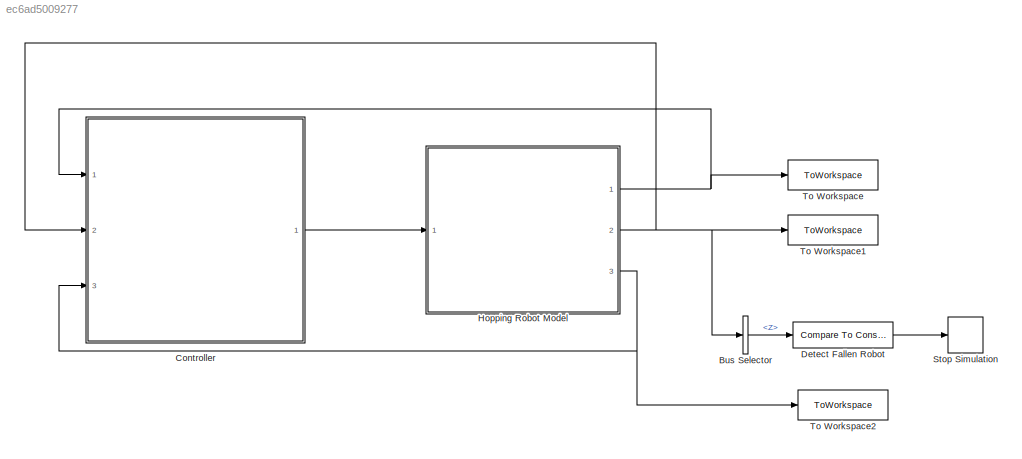
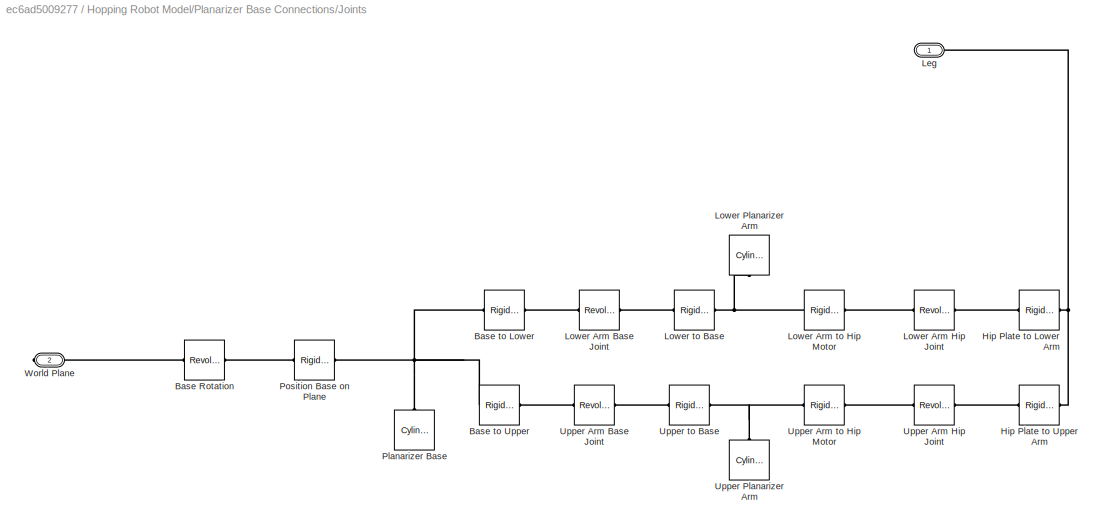
MODEL slx_ec6ad5009277
KIND model
CONFIG AbsTol = auto
CONFIG EnableMultiTasking = off
CONFIG FixedStep = 1E-6
CONFIG MaxStep = 1E-5
CONFIG MinStep = auto
CONFIG RelTol = 1E-9
CONFIG SampleTimeConstraint = Unconstrained
CONFIG SolverName = VariableStepAuto
CONFIG StartTime = 0.0
CONFIG StopTime = 4
BLOCK [BusSelector] Bus Selector
  OutputSignals = Z
  Ports = [1, 1]
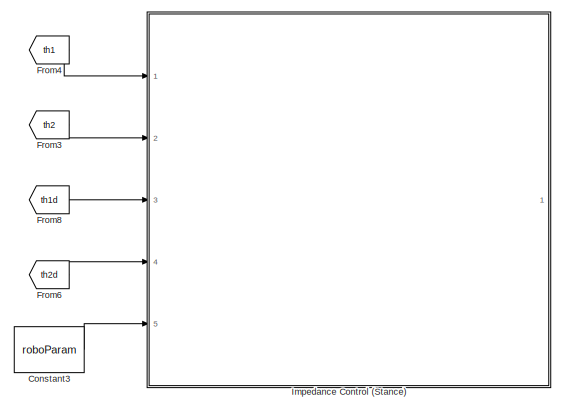
[diagram: Controller - part 1/3, top center region]
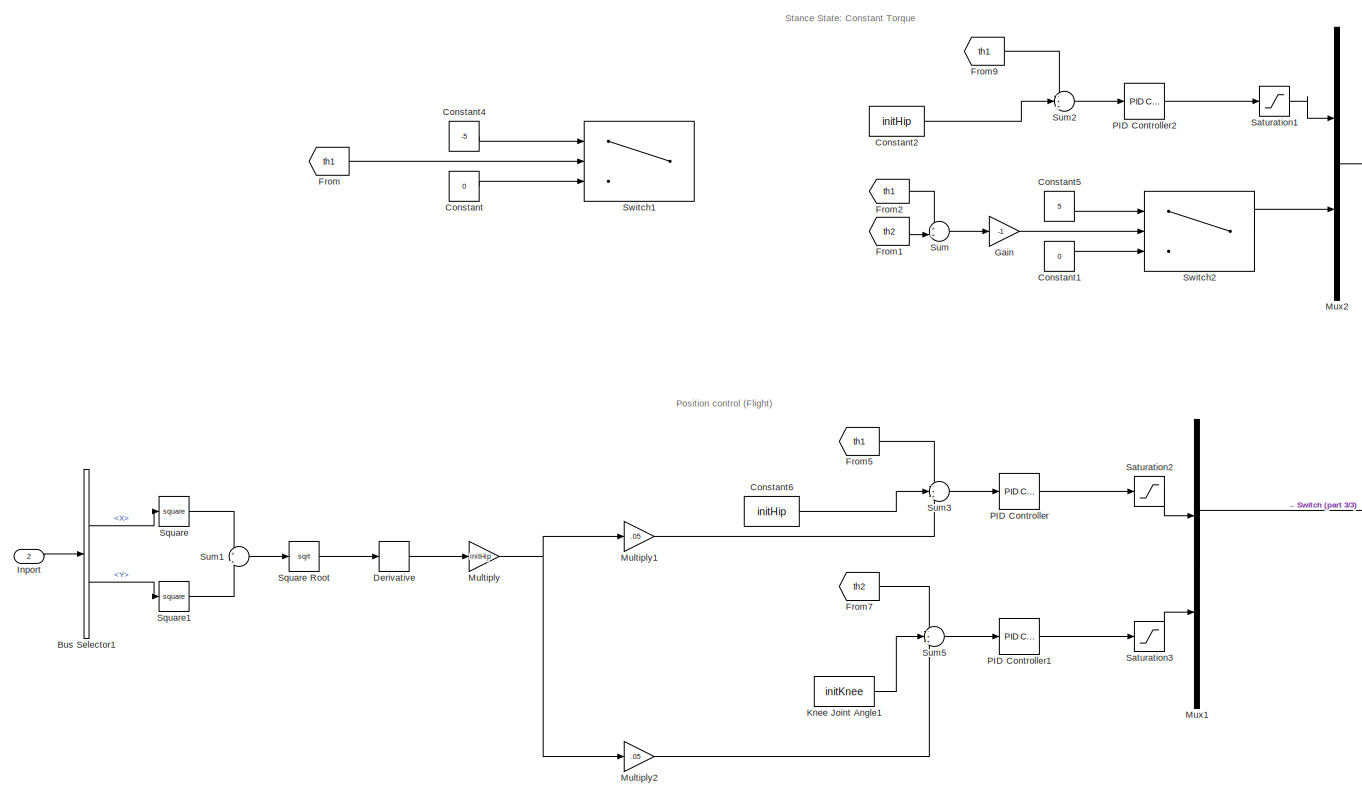
[diagram: Controller - part 2/3, bottom left region]
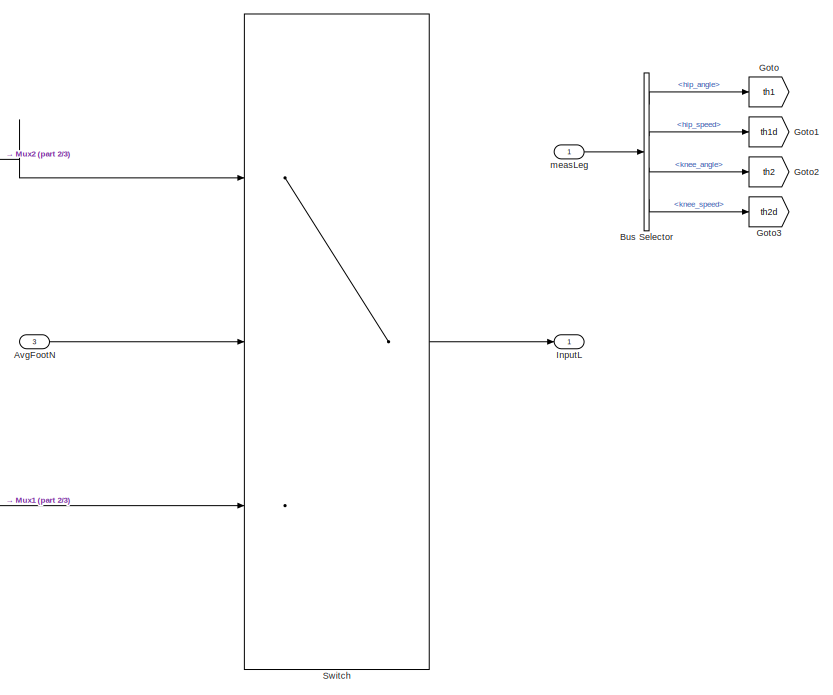
[diagram: Controller - part 3/3, middle right region]
BLOCK [SubSystem] Controller
  Ports = [3, 1]
  RequestExecContextInheritance = off
BLOCK [Inport] Controller/AvgFootN
  Port = 3
BLOCK [BusSelector] Controller/Bus Selector
  OutputSignals = hip_angle,hip_speed,knee_angle,knee_speed
  Ports = [1, 4]
BLOCK [BusSelector] Controller/Bus Selector1
  Commented = on
  OutputSignals = X,Y
  Ports = [1, 2]
BLOCK [Constant] Controller/Constant
  Commented = on
  Value = 0
BLOCK [Constant] Controller/Constant1
  Value = 0
BLOCK [Constant] Controller/Constant2
  Value = initHip
BLOCK [Constant] Controller/Constant3
  Commented = on
  Value = roboParam
BLOCK [Constant] Controller/Constant4
  Commented = on
  Value = -5
BLOCK [Constant] Controller/Constant5
  Value = 5
BLOCK [Constant] Controller/Constant6
  Value = initHip
BLOCK [Derivative] Controller/Derivative
  Commented = on
BLOCK [From] Controller/From
  Commented = on
  GotoTag = th1
BLOCK [From] Controller/From1
  GotoTag = th2
BLOCK [From] Controller/From2
  GotoTag = th1
BLOCK [From] Controller/From3
  Commented = on
  GotoTag = th2
BLOCK [From] Controller/From4
  Commented = on
  GotoTag = th1
BLOCK [From] Controller/From5
  GotoTag = th1
BLOCK [From] Controller/From6
  Commented = on
  GotoTag = th2d
BLOCK [From] Controller/From7
  GotoTag = th2
BLOCK [From] Controller/From8
  Commented = on
  GotoTag = th1d
BLOCK [From] Controller/From9
  GotoTag = th1
BLOCK [Gain] Controller/Gain
  Gain = -1
BLOCK [Goto] Controller/Goto
  GotoTag = th1
BLOCK [Goto] Controller/Goto1
  GotoTag = th1d
BLOCK [Goto] Controller/Goto2
  GotoTag = th2
BLOCK [Goto] Controller/Goto3
  GotoTag = th2d
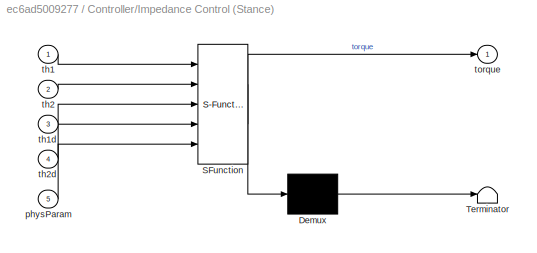
BLOCK [SubSystem] Controller/Impedance Control (Stance)
  Commented = on
  ErrorFcn = Stateflow.Translate.translate
  PermitHierarchicalResolution = ExplicitOnly
  Ports = [5, 1]
  RequestExecContextInheritance = off
  SFBlockType = MATLAB Function
  TreatAsAtomicUnit = on
BLOCK [Demux] Controller/Impedance Control (Stance)/ Demux 
  Outputs = 1
  Ports = [1, 1]
BLOCK [S-Function] Controller/Impedance Control (Stance)/ SFunction 
  EnableBusSupport = on
  FunctionName = sf_sfun
  PortCounts = [5 2]
  Ports = [5, 2]
  SFcnIsStateOwnerBlock = off
  SFunctionDeploymentMode = off
  Tag = Stateflow S-Function 2
BLOCK [Terminator] Controller/Impedance Control (Stance)/ Terminator 
BLOCK [Inport] Controller/Impedance Control (Stance)/physParam
  Port = 5
BLOCK [Inport] Controller/Impedance Control (Stance)/th1
BLOCK [Inport] Controller/Impedance Control (Stance)/th1d
  Port = 3
BLOCK [Inport] Controller/Impedance Control (Stance)/th2
  Port = 2
BLOCK [Inport] Controller/Impedance Control (Stance)/th2d
  Port = 4
BLOCK [Outport] Controller/Impedance Control (Stance)/torque
BLOCK [Inport] Controller/Inport
  Port = 2
BLOCK [Outport] Controller/InputL
BLOCK [Constant] Controller/Knee Joint Angle1
  Value = initKnee
BLOCK [Gain] Controller/Multiply
  Commented = on
  Gain = initHip
BLOCK [Gain] Controller/Multiply1
  Commented = on
  Gain = .05
BLOCK [Gain] Controller/Multiply2
  Commented = on
  Gain = .05
BLOCK [Mux] Controller/Mux1
  DisplayOption = bar
  Inputs = 2
  Ports = [2, 1]
BLOCK [Mux] Controller/Mux2
  DisplayOption = bar
  Inputs = 2
  Ports = [2, 1]
BLOCK [Reference] Controller/PID Controller  REF=slpidlib/PID Controller
  Ports = [1, 1]
  SourceBlock = slpidlib/PID Controller
  SourceProductBaseCode = SL
  SourceType = PID 1dof
BLOCK [Reference] Controller/PID Controller1  REF=slpidlib/PID Controller
  Ports = [1, 1]
  SourceBlock = slpidlib/PID Controller
  SourceProductBaseCode = SL
  SourceType = PID 1dof
BLOCK [Reference] Controller/PID Controller2  REF=slpidlib/PID Controller
  Ports = [1, 1]
  SourceBlock = slpidlib/PID Controller
  SourceProductBaseCode = SL
  SourceType = PID 1dof
BLOCK [Saturate] Controller/Saturation1
  LowerLimit = -8
  UpperLimit = 8
BLOCK [Saturate] Controller/Saturation2
  LowerLimit = -8
  UpperLimit = 8
BLOCK [Saturate] Controller/Saturation3
  LowerLimit = -8
  UpperLimit = 8
BLOCK [Math] Controller/Square
  Commented = on
  Operator = square
  Ports = [1, 1]
BLOCK [Sqrt] Controller/Square Root
  Commented = on
BLOCK [Math] Controller/Square1
  Commented = on
  Operator = square
  Ports = [1, 1]
BLOCK [Sum] Controller/Sum
  Inputs = ++|
  Ports = [2, 1]
BLOCK [Sum] Controller/Sum1
  Commented = on
  Inputs = +|+
  Ports = [2, 1]
BLOCK [Sum] Controller/Sum2
  Inputs = -++
  Ports = [3, 1]
BLOCK [Sum] Controller/Sum3
  Inputs = -++
  Ports = [3, 1]
BLOCK [Sum] Controller/Sum5
  Inputs = -++
  Ports = [3, 1]
BLOCK [Switch] Controller/Switch
  Criteria = u2 > Threshold
  InputSameDT = off
  SaturateOnIntegerOverflow = off
BLOCK [Switch] Controller/Switch1
  Commented = on
  Criteria = u2 > Threshold
  InputSameDT = off
  SaturateOnIntegerOverflow = off
  Threshold = .43
BLOCK [Switch] Controller/Switch2
  Criteria = u2 > Threshold
  InputSameDT = off
  SaturateOnIntegerOverflow = off
  Threshold = .5
BLOCK [Inport] Controller/measLeg
BLOCK [Reference] Detect Fallen Robot  REF=simulink/Logic and Bit
Operations/Compare
To Constant
  Ports = [1, 1]
  SourceBlock = simulink/Logic and Bit\nOperations/Compare\nTo Constant
  SourceProductBaseCode = SL
  SourceType = Compare To Constant
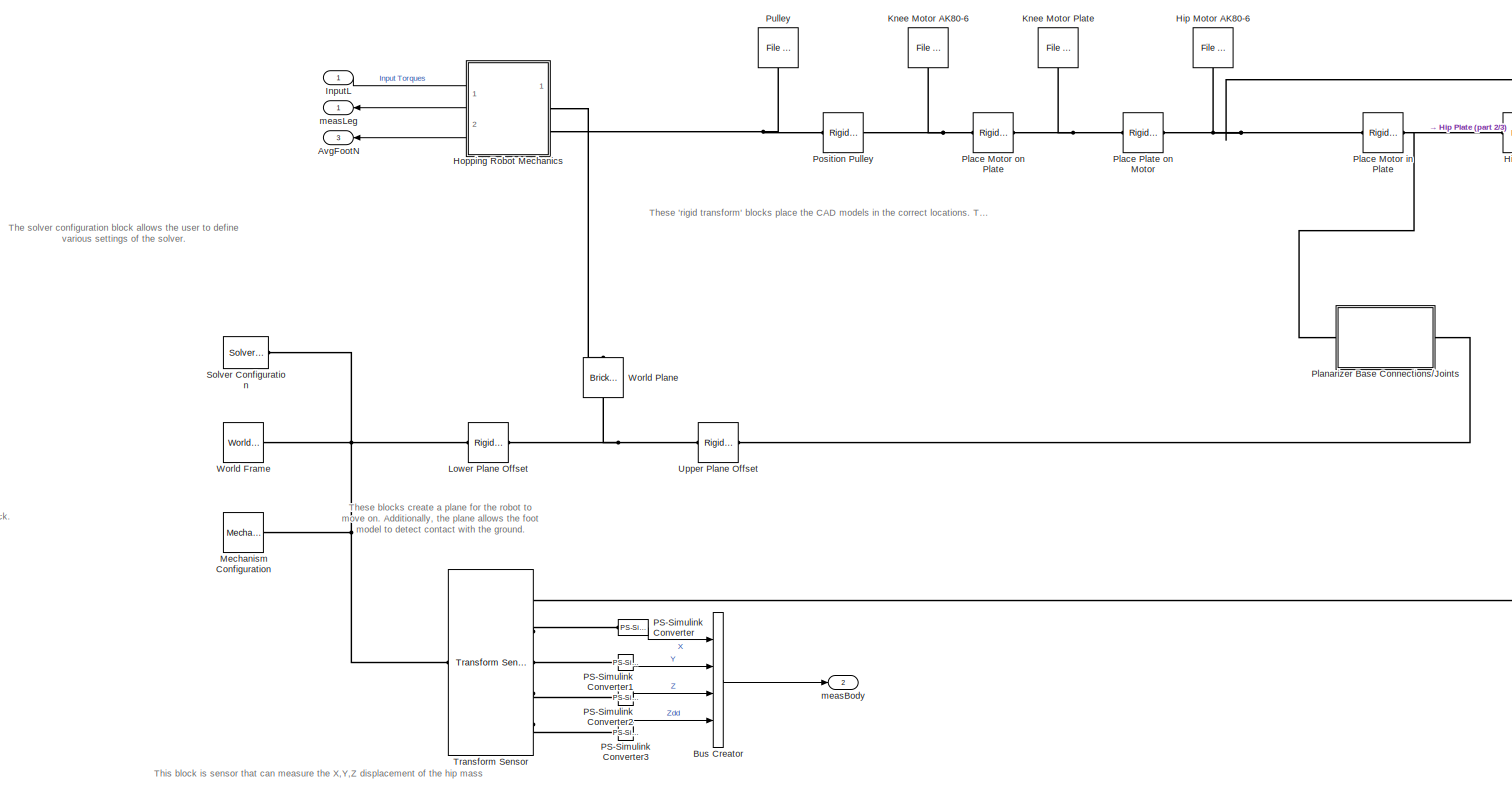
[diagram: Hopping Robot Model - part 1/3, most of the canvas]
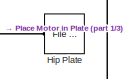
[diagram: Hopping Robot Model - part 2/3, top right region]
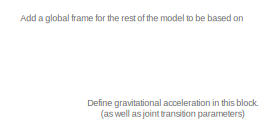
[diagram: Hopping Robot Model - part 3/3, middle left region]
BLOCK [SubSystem] Hopping Robot Model
  Ports = [1, 3]
  RequestExecContextInheritance = off
BLOCK [Outport] Hopping Robot Model/AvgFootN
  Port = 3
BLOCK [BusCreator] Hopping Robot Model/Bus Creator
  DisplayOption = bar
  InheritFromInputs = on
  Inputs = 4
  Ports = [4, 1]
BLOCK [Reference] Hopping Robot Model/Hip Motor AK80-6  REF=sm_lib/Body Elements/File Solid
  NameLocation = top
  Ports = [0, 0, 0, 0, 0, 0, 1]
  SourceBlock = sm_lib/Body Elements/File Solid
  SourceProductBaseCode = MS
  SourceType = File Solid
BLOCK [Reference] Hopping Robot Model/Hip Plate  REF=sm_lib/Body Elements/File Solid
  NameLocation = top
  Ports = [0, 0, 0, 0, 0, 0, 1]
  SourceBlock = sm_lib/Body Elements/File Solid
  SourceProductBaseCode = MS
  SourceType = File Solid
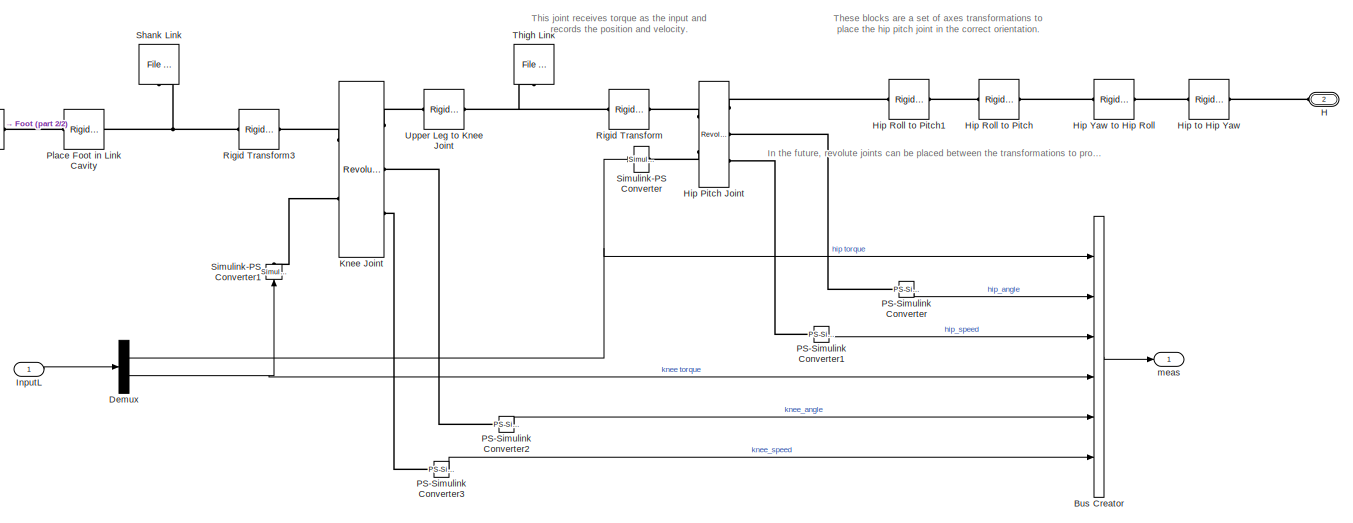
[diagram: Hopping Robot Model/Hopping Robot Mechanics - part 1/2, most of the canvas]
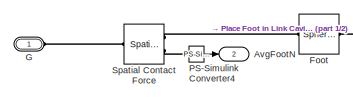
[diagram: Hopping Robot Model/Hopping Robot Mechanics - part 2/2, top left region]
BLOCK [SubSystem] Hopping Robot Model/Hopping Robot Mechanics
  PortSchema = {"entries":[{"content":{"sides":[{"content":{"connectorIds":["LConn1","LConn2"]},"type":"ConnectorPlacement.EquallySpacedRectSide","uuid":"2e35cc04-a060-4e4a-9dbe-9dc1ccd10687"},{"content":{"connectorIds":["In1","Out1","Out2"],"side":"RIGHT"},"type":"ConnectorPlacement.EquallySpacedRectSide","uuid":"c6bb660b-0b98-4ab9-9025-982c1a13b41d"},{"content":{"connectorIds":[],"side":"TOP"},"type":"Connecto...<+409ch>
  Ports = [1, 2, 0, 0, 0, 2]
  RequestExecContextInheritance = off
BLOCK [Outport] Hopping Robot Model/Hopping Robot Mechanics/AvgFootN
  Port = 2
BLOCK [BusCreator] Hopping Robot Model/Hopping Robot Mechanics/Bus Creator
  DisplayOption = bar
  InheritFromInputs = on
  Inputs = 6
  Ports = [6, 1]
BLOCK [Demux] Hopping Robot Model/Hopping Robot Mechanics/Demux
  Outputs = 2
  Ports = [1, 2]
BLOCK [Reference] Hopping Robot Model/Hopping Robot Mechanics/Foot  REF=sm_lib/Body Elements/Spherical Solid
  NameLocation = top
  Ports = [0, 0, 0, 0, 0, 1, 1]
  SourceBlock = sm_lib/Body Elements/Spherical Solid
  SourceProductBaseCode = MS
  SourceType = Spherical Solid
BLOCK [PMIOPort] Hopping Robot Model/Hopping Robot Mechanics/G
  Side = Left
BLOCK [PMIOPort] Hopping Robot Model/Hopping Robot Mechanics/H
  Port = 2
  Side = Left
BLOCK [Reference] Hopping Robot Model/Hopping Robot Mechanics/Hip Pitch Joint  REF=sm_lib/Joints/Revolute Joint
  Ports = [0, 0, 0, 0, 0, 2, 3]
  SourceBlock = sm_lib/Joints/Revolute Joint
  SourceProductBaseCode = MS
  SourceType = Revolute Joint
BLOCK [Reference] Hopping Robot Model/Hopping Robot Mechanics/Hip Roll to Pitch  REF=sm_lib/Frames and
Transforms/Rigid
Transform
  Ports = [0, 0, 0, 0, 0, 1, 1]
  SourceBlock = sm_lib/Frames and\nTransforms/Rigid\nTransform
  SourceProductBaseCode = MS
  SourceType = Rigid\nTransform
BLOCK [Reference] Hopping Robot Model/Hopping Robot Mechanics/Hip Roll to Pitch1  REF=sm_lib/Frames and
Transforms/Rigid
Transform
  Ports = [0, 0, 0, 0, 0, 1, 1]
  SourceBlock = sm_lib/Frames and\nTransforms/Rigid\nTransform
  SourceProductBaseCode = MS
  SourceType = Rigid\nTransform
BLOCK [Reference] Hopping Robot Model/Hopping Robot Mechanics/Hip Yaw to Hip Roll  REF=sm_lib/Frames and
Transforms/Rigid
Transform
  Ports = [0, 0, 0, 0, 0, 1, 1]
  SourceBlock = sm_lib/Frames and\nTransforms/Rigid\nTransform
  SourceProductBaseCode = MS
  SourceType = Rigid\nTransform
BLOCK [Reference] Hopping Robot Model/Hopping Robot Mechanics/Hip to Hip Yaw  REF=sm_lib/Frames and
Transforms/Rigid
Transform
  Ports = [0, 0, 0, 0, 0, 1, 1]
  SourceBlock = sm_lib/Frames and\nTransforms/Rigid\nTransform
  SourceProductBaseCode = MS
  SourceType = Rigid\nTransform
BLOCK [Inport] Hopping Robot Model/Hopping Robot Mechanics/InputL
BLOCK [Reference] Hopping Robot Model/Hopping Robot Mechanics/Knee Joint  REF=sm_lib/Joints/Revolute Joint
  Ports = [0, 0, 0, 0, 0, 2, 3]
  SourceBlock = sm_lib/Joints/Revolute Joint
  SourceProductBaseCode = MS
  SourceType = Revolute Joint
BLOCK [Reference] Hopping Robot Model/Hopping Robot Mechanics/PS-Simulink Converter  REF=nesl_utility/PS-Simulink
Converter
  Ports = [0, 1, 0, 0, 0, 1]
  SourceBlock = nesl_utility/PS-Simulink\nConverter
  SourceProductBaseCode = SS,PW,VE
  SourceType = PS-Simulink\nConverter
BLOCK [Reference] Hopping Robot Model/Hopping Robot Mechanics/PS-Simulink Converter1  REF=nesl_utility/PS-Simulink
Converter
  Ports = [0, 1, 0, 0, 0, 1]
  SourceBlock = nesl_utility/PS-Simulink\nConverter
  SourceProductBaseCode = SS,PW,VE
  SourceType = PS-Simulink\nConverter
BLOCK [Reference] Hopping Robot Model/Hopping Robot Mechanics/PS-Simulink Converter2  REF=nesl_utility/PS-Simulink
Converter
  Ports = [0, 1, 0, 0, 0, 1]
  SourceBlock = nesl_utility/PS-Simulink\nConverter
  SourceProductBaseCode = SS,PW,VE
  SourceType = PS-Simulink\nConverter
BLOCK [Reference] Hopping Robot Model/Hopping Robot Mechanics/PS-Simulink Converter3  REF=nesl_utility/PS-Simulink
Converter
  Ports = [0, 1, 0, 0, 0, 1]
  SourceBlock = nesl_utility/PS-Simulink\nConverter
  SourceProductBaseCode = SS,PW,VE
  SourceType = PS-Simulink\nConverter
BLOCK [Reference] Hopping Robot Model/Hopping Robot Mechanics/PS-Simulink Converter4  REF=nesl_utility/PS-Simulink
Converter
  Ports = [0, 1, 0, 0, 0, 1]
  SourceBlock = nesl_utility/PS-Simulink\nConverter
  SourceProductBaseCode = SS,PW,VE
  SourceType = PS-Simulink\nConverter
BLOCK [Reference] Hopping Robot Model/Hopping Robot Mechanics/Place Foot in Link Cavity  REF=sm_lib/Frames and
Transforms/Rigid
Transform
  Ports = [0, 0, 0, 0, 0, 1, 1]
  SourceBlock = sm_lib/Frames and\nTransforms/Rigid\nTransform
  SourceProductBaseCode = MS
  SourceType = Rigid\nTransform
BLOCK [Reference] Hopping Robot Model/Hopping Robot Mechanics/Rigid Transform  REF=sm_lib/Frames and
Transforms/Rigid
Transform
  Ports = [0, 0, 0, 0, 0, 1, 1]
  SourceBlock = sm_lib/Frames and\nTransforms/Rigid\nTransform
  SourceProductBaseCode = MS
  SourceType = Rigid\nTransform
BLOCK [Reference] Hopping Robot Model/Hopping Robot Mechanics/Rigid Transform3  REF=sm_lib/Frames and
Transforms/Rigid
Transform
  Ports = [0, 0, 0, 0, 0, 1, 1]
  SourceBlock = sm_lib/Frames and\nTransforms/Rigid\nTransform
  SourceProductBaseCode = MS
  SourceType = Rigid\nTransform
BLOCK [Reference] Hopping Robot Model/Hopping Robot Mechanics/Shank Link  REF=sm_lib/Body Elements/File Solid
  NameLocation = top
  Ports = [0, 0, 0, 0, 0, 0, 1]
  SourceBlock = sm_lib/Body Elements/File Solid
  SourceProductBaseCode = MS
  SourceType = File Solid
BLOCK [Reference] Hopping Robot Model/Hopping Robot Mechanics/Simulink-PS Converter  REF=nesl_utility/Simulink-PS
Converter
  Ports = [1, 0, 0, 0, 0, 0, 1]
  SourceBlock = nesl_utility/Simulink-PS\nConverter
  SourceProductBaseCode = SS,PW,VE
  SourceType = Simulink-PS\nConverter
BLOCK [Reference] Hopping Robot Model/Hopping Robot Mechanics/Simulink-PS Converter1  REF=nesl_utility/Simulink-PS
Converter
  NameLocation = right
  Ports = [1, 0, 0, 0, 0, 0, 1]
  SourceBlock = nesl_utility/Simulink-PS\nConverter
  SourceProductBaseCode = SS,PW,VE
  SourceType = Simulink-PS\nConverter
BLOCK [Reference] Hopping Robot Model/Hopping Robot Mechanics/Spatial Contact Force  REF=sm_lib/Forces and
Torques/Spatial
Contact Force
  Ports = [0, 0, 0, 0, 0, 1, 2]
  SourceBlock = sm_lib/Forces and\nTorques/Spatial\nContact Force
  SourceProductBaseCode = MS
  SourceType = Spatial\nContact Force
BLOCK [Reference] Hopping Robot Model/Hopping Robot Mechanics/Thigh Link  REF=sm_lib/Body Elements/File Solid
  NameLocation = top
  Ports = [0, 0, 0, 0, 0, 0, 1]
  SourceBlock = sm_lib/Body Elements/File Solid
  SourceProductBaseCode = MS
  SourceType = File Solid
BLOCK [Reference] Hopping Robot Model/Hopping Robot Mechanics/Upper Leg to Knee Joint  REF=sm_lib/Frames and
Transforms/Rigid
Transform
  NameLocation = top
  Ports = [0, 0, 0, 0, 0, 1, 1]
  SourceBlock = sm_lib/Frames and\nTransforms/Rigid\nTransform
  SourceProductBaseCode = MS
  SourceType = Rigid\nTransform
BLOCK [Outport] Hopping Robot Model/Hopping Robot Mechanics/meas
BLOCK [Inport] Hopping Robot Model/InputL
BLOCK [Reference] Hopping Robot Model/Knee Motor AK80-6  REF=sm_lib/Body Elements/File Solid
  NameLocation = top
  Ports = [0, 0, 0, 0, 0, 0, 1]
  SourceBlock = sm_lib/Body Elements/File Solid
  SourceProductBaseCode = MS
  SourceType = File Solid
BLOCK [Reference] Hopping Robot Model/Knee Motor Plate  REF=sm_lib/Body Elements/File Solid
  NameLocation = top
  Ports = [0, 0, 0, 0, 0, 0, 1]
  SourceBlock = sm_lib/Body Elements/File Solid
  SourceProductBaseCode = MS
  SourceType = File Solid
BLOCK [Reference] Hopping Robot Model/Lower Plane Offset  REF=sm_lib/Frames and
Transforms/Rigid
Transform
  Ports = [0, 0, 0, 0, 0, 1, 1]
  SourceBlock = sm_lib/Frames and\nTransforms/Rigid\nTransform
  SourceProductBaseCode = MS
  SourceType = Rigid\nTransform
BLOCK [Reference] Hopping Robot Model/Mechanism Configuration  REF=sm_lib/Utilities/Mechanism
Configuration
  Ports = [0, 0, 0, 0, 0, 0, 1]
  SourceBlock = sm_lib/Utilities/Mechanism\nConfiguration
  SourceProductBaseCode = MS
  SourceType = Mechanism\nConfiguration
BLOCK [Reference] Hopping Robot Model/PS-Simulink Converter  REF=nesl_utility/PS-Simulink
Converter
  Ports = [0, 1, 0, 0, 0, 1]
  SourceBlock = nesl_utility/PS-Simulink\nConverter
  SourceProductBaseCode = SS,PW,VE
  SourceType = PS-Simulink\nConverter
BLOCK [Reference] Hopping Robot Model/PS-Simulink Converter1  REF=nesl_utility/PS-Simulink
Converter
  Ports = [0, 1, 0, 0, 0, 1]
  SourceBlock = nesl_utility/PS-Simulink\nConverter
  SourceProductBaseCode = SS,PW,VE
  SourceType = PS-Simulink\nConverter
BLOCK [Reference] Hopping Robot Model/PS-Simulink Converter2  REF=nesl_utility/PS-Simulink
Converter
  Ports = [0, 1, 0, 0, 0, 1]
  SourceBlock = nesl_utility/PS-Simulink\nConverter
  SourceProductBaseCode = SS,PW,VE
  SourceType = PS-Simulink\nConverter
BLOCK [Reference] Hopping Robot Model/PS-Simulink Converter3  REF=nesl_utility/PS-Simulink
Converter
  Ports = [0, 1, 0, 0, 0, 1]
  SourceBlock = nesl_utility/PS-Simulink\nConverter
  SourceProductBaseCode = SS,PW,VE
  SourceType = PS-Simulink\nConverter
BLOCK [Reference] Hopping Robot Model/Place Motor in Plate  REF=sm_lib/Frames and
Transforms/Rigid
Transform
  NameLocation = top
  Ports = [0, 0, 0, 0, 0, 1, 1]
  SourceBlock = sm_lib/Frames and\nTransforms/Rigid\nTransform
  SourceProductBaseCode = MS
  SourceType = Rigid\nTransform
BLOCK [Reference] Hopping Robot Model/Place Motor on Plate  REF=sm_lib/Frames and
Transforms/Rigid
Transform
  NameLocation = top
  Ports = [0, 0, 0, 0, 0, 1, 1]
  SourceBlock = sm_lib/Frames and\nTransforms/Rigid\nTransform
  SourceProductBaseCode = MS
  SourceType = Rigid\nTransform
BLOCK [Reference] Hopping Robot Model/Place Plate on Motor  REF=sm_lib/Frames and
Transforms/Rigid
Transform
  NameLocation = top
  Ports = [0, 0, 0, 0, 0, 1, 1]
  SourceBlock = sm_lib/Frames and\nTransforms/Rigid\nTransform
  SourceProductBaseCode = MS
  SourceType = Rigid\nTransform
BLOCK [SubSystem] Hopping Robot Model/Planarizer Base Connections//Joints
  Ports = [0, 0, 0, 0, 0, 1, 1]
  RequestExecContextInheritance = off
BLOCK [Reference] Hopping Robot Model/Planarizer Base Connections//Joints/Base Rotation  REF=sm_lib/Joints/Revolute Joint
  NameLocation = top
  Ports = [0, 0, 0, 0, 0, 1, 1]
  SourceBlock = sm_lib/Joints/Revolute Joint
  SourceProductBaseCode = MS
  SourceType = Revolute Joint
BLOCK [Reference] Hopping Robot Model/Planarizer Base Connections//Joints/Base to Lower  REF=sm_lib/Frames and
Transforms/Rigid
Transform
  Ports = [0, 0, 0, 0, 0, 1, 1]
  SourceBlock = sm_lib/Frames and\nTransforms/Rigid\nTransform
  SourceProductBaseCode = MS
  SourceType = Rigid\nTransform
BLOCK [Reference] Hopping Robot Model/Planarizer Base Connections//Joints/Base to Upper  REF=sm_lib/Frames and
Transforms/Rigid
Transform
  Ports = [0, 0, 0, 0, 0, 1, 1]
  SourceBlock = sm_lib/Frames and\nTransforms/Rigid\nTransform
  SourceProductBaseCode = MS
  SourceType = Rigid\nTransform
BLOCK [Reference] Hopping Robot Model/Planarizer Base Connections//Joints/Hip Plate to Lower Arm  REF=sm_lib/Frames and
Transforms/Rigid
Transform
  Ports = [0, 0, 0, 0, 0, 1, 1]
  SourceBlock = sm_lib/Frames and\nTransforms/Rigid\nTransform
  SourceProductBaseCode = MS
  SourceType = Rigid\nTransform
BLOCK [Reference] Hopping Robot Model/Planarizer Base Connections//Joints/Hip Plate to Upper Arm  REF=sm_lib/Frames and
Transforms/Rigid
Transform
  Ports = [0, 0, 0, 0, 0, 1, 1]
  SourceBlock = sm_lib/Frames and\nTransforms/Rigid\nTransform
  SourceProductBaseCode = MS
  SourceType = Rigid\nTransform
BLOCK [PMIOPort] Hopping Robot Model/Planarizer Base Connections//Joints/Leg
  Side = Left
BLOCK [Reference] Hopping Robot Model/Planarizer Base Connections//Joints/Lower Arm Base Joint  REF=sm_lib/Joints/Revolute Joint
  Ports = [0, 0, 0, 0, 0, 1, 1]
  SourceBlock = sm_lib/Joints/Revolute Joint
  SourceProductBaseCode = MS
  SourceType = Revolute Joint
BLOCK [Reference] Hopping Robot Model/Planarizer Base Connections//Joints/Lower Arm Hip Joint  REF=sm_lib/Joints/Revolute Joint
  Ports = [0, 0, 0, 0, 0, 1, 1]
  SourceBlock = sm_lib/Joints/Revolute Joint
  SourceProductBaseCode = MS
  SourceType = Revolute Joint
BLOCK [Reference] Hopping Robot Model/Planarizer Base Connections//Joints/Lower Arm to Hip Motor  REF=sm_lib/Frames and
Transforms/Rigid
Transform
  Ports = [0, 0, 0, 0, 0, 1, 1]
  SourceBlock = sm_lib/Frames and\nTransforms/Rigid\nTransform
  SourceProductBaseCode = MS
  SourceType = Rigid\nTransform
BLOCK [Reference] Hopping Robot Model/Planarizer Base Connections//Joints/Lower Planarizer Arm  REF=sm_lib/Body Elements/Cylindrical Solid
  NameLocation = left
  Ports = [0, 0, 0, 0, 0, 0, 1]
  SourceBlock = sm_lib/Body Elements/Cylindrical Solid
  SourceProductBaseCode = MS
  SourceType = Cylindrical Solid
BLOCK [Reference] Hopping Robot Model/Planarizer Base Connections//Joints/Lower to Base  REF=sm_lib/Frames and
Transforms/Rigid
Transform
  Ports = [0, 0, 0, 0, 0, 1, 1]
  SourceBlock = sm_lib/Frames and\nTransforms/Rigid\nTransform
  SourceProductBaseCode = MS
  SourceType = Rigid\nTransform
BLOCK [Reference] Hopping Robot Model/Planarizer Base Connections//Joints/Planarizer Base  REF=sm_lib/Body Elements/Cylindrical Solid
  NameLocation = left
  Ports = [0, 0, 0, 0, 0, 0, 1]
  SourceBlock = sm_lib/Body Elements/Cylindrical Solid
  SourceProductBaseCode = MS
  SourceType = Cylindrical Solid
BLOCK [Reference] Hopping Robot Model/Planarizer Base Connections//Joints/Position Base on Plane  REF=sm_lib/Frames and
Transforms/Rigid
Transform
  Ports = [0, 0, 0, 0, 0, 1, 1]
  SourceBlock = sm_lib/Frames and\nTransforms/Rigid\nTransform
  SourceProductBaseCode = MS
  SourceType = Rigid\nTransform
BLOCK [Reference] Hopping Robot Model/Planarizer Base Connections//Joints/Upper Arm Base Joint  REF=sm_lib/Joints/Revolute Joint
  Ports = [0, 0, 0, 0, 0, 1, 1]
  SourceBlock = sm_lib/Joints/Revolute Joint
  SourceProductBaseCode = MS
  SourceType = Revolute Joint
BLOCK [Reference] Hopping Robot Model/Planarizer Base Connections//Joints/Upper Arm Hip Joint  REF=sm_lib/Joints/Revolute Joint
  Ports = [0, 0, 0, 0, 0, 1, 1]
  SourceBlock = sm_lib/Joints/Revolute Joint
  SourceProductBaseCode = MS
  SourceType = Revolute Joint
BLOCK [Reference] Hopping Robot Model/Planarizer Base Connections//Joints/Upper Arm to Hip Motor  REF=sm_lib/Frames and
Transforms/Rigid
Transform
  Ports = [0, 0, 0, 0, 0, 1, 1]
  SourceBlock = sm_lib/Frames and\nTransforms/Rigid\nTransform
  SourceProductBaseCode = MS
  SourceType = Rigid\nTransform
BLOCK [Reference] Hopping Robot Model/Planarizer Base Connections//Joints/Upper Planarizer Arm  REF=sm_lib/Body Elements/Cylindrical Solid
  NameLocation = left
  Ports = [0, 0, 0, 0, 0, 0, 1]
  SourceBlock = sm_lib/Body Elements/Cylindrical Solid
  SourceProductBaseCode = MS
  SourceType = Cylindrical Solid
BLOCK [Reference] Hopping Robot Model/Planarizer Base Connections//Joints/Upper to Base  REF=sm_lib/Frames and
Transforms/Rigid
Transform
  Ports = [0, 0, 0, 0, 0, 1, 1]
  SourceBlock = sm_lib/Frames and\nTransforms/Rigid\nTransform
  SourceProductBaseCode = MS
  SourceType = Rigid\nTransform
BLOCK [PMIOPort] Hopping Robot Model/Planarizer Base Connections//Joints/World Plane
  Port = 2
  Side = Right
BLOCK [Reference] Hopping Robot Model/Position Pulley  REF=sm_lib/Frames and
Transforms/Rigid
Transform
  NameLocation = top
  Ports = [0, 0, 0, 0, 0, 1, 1]
  SourceBlock = sm_lib/Frames and\nTransforms/Rigid\nTransform
  SourceProductBaseCode = MS
  SourceType = Rigid\nTransform
BLOCK [Reference] Hopping Robot Model/Pulley  REF=sm_lib/Body Elements/File Solid
  NameLocation = top
  Ports = [0, 0, 0, 0, 0, 0, 1]
  SourceBlock = sm_lib/Body Elements/File Solid
  SourceProductBaseCode = MS
  SourceType = File Solid
BLOCK [Reference] Hopping Robot Model/Solver Configuration  REF=nesl_utility/Solver
Configuration
  Ports = [0, 0, 0, 0, 0, 0, 1]
  SourceBlock = nesl_utility/Solver\nConfiguration
  SourceProductBaseCode = SS,PW,VE
  SourceType = Solver\nConfiguration
BLOCK [Reference] Hopping Robot Model/Transform Sensor  REF=sm_lib/Frames and
Transforms/Transform
Sensor
  Ports = [0, 0, 0, 0, 0, 1, 5]
  SourceBlock = sm_lib/Frames and\nTransforms/Transform\nSensor
  SourceProductBaseCode = MS
  SourceType = Transform\nSensor
BLOCK [Reference] Hopping Robot Model/Upper Plane Offset  REF=sm_lib/Frames and
Transforms/Rigid
Transform
  Ports = [0, 0, 0, 0, 0, 1, 1]
  SourceBlock = sm_lib/Frames and\nTransforms/Rigid\nTransform
  SourceProductBaseCode = MS
  SourceType = Rigid\nTransform
BLOCK [Reference] Hopping Robot Model/World Frame  REF=sm_lib/Frames and
Transforms/World Frame
  Ports = [0, 0, 0, 0, 0, 0, 1]
  SourceBlock = sm_lib/Frames and\nTransforms/World Frame
  SourceProductBaseCode = MS
  SourceType = World Frame
BLOCK [Reference] Hopping Robot Model/World Plane  REF=sm_lib/Body Elements/Brick Solid
  NameLocation = right
  Ports = [0, 0, 0, 0, 0, 1, 1]
  SourceBlock = sm_lib/Body Elements/Brick Solid
  SourceProductBaseCode = MS
  SourceType = Brick Solid
BLOCK [Outport] Hopping Robot Model/measBody
  Port = 2
BLOCK [Outport] Hopping Robot Model/measLeg
BLOCK [Stop] Stop Simulation
BLOCK [ToWorkspace] To Workspace
  FixptAsFi = on
  MaxDataPoints = inf
  Ports = [1]
  SampleTime = -1
  VariableName = measLeg
BLOCK [ToWorkspace] To Workspace1
  FixptAsFi = on
  MaxDataPoints = inf
  Ports = [1]
  SampleTime = -1
  VariableName = measBody
BLOCK [ToWorkspace] To Workspace2
  FixptAsFi = on
  MaxDataPoints = inf
  Ports = [1]
  SampleTime = -1
  VariableName = GRF
ANNOTATION Controller: Position control (Flight)
ANNOTATION Controller: Stance State: Constant Torque
ANNOTATION Hopping Robot Model: These blocks create a plane for the robot to move on. Additionally, the plane allows the foot model to detect contact with the ground.
ANNOTATION Hopping Robot Model: Add a global frame for the rest of the model to be based on
ANNOTATION Hopping Robot Model: Define gravitational acceleration in this block. (as well as joint transition parameters)
ANNOTATION Hopping Robot Model: The solver configuration block allows the user to define various settings of the solver.
ANNOTATION Hopping Robot Model: These 'rigid transform' blocks place the CAD models in the correct locations. There are only Cartesian transformations, and do not change the orientation of the axes in anyway.
ANNOTATION Hopping Robot Model: This block is sensor that can measure the X,Y,Z displacement of the hip mass
ANNOTATION Hopping Robot Model/Hopping Robot Mechanics: In the future, revolute joints can be placed between the transformations to provide more degrees of freedom.
ANNOTATION Hopping Robot Model/Hopping Robot Mechanics: These blocks are a set of axes transformations to place the hip pitch joint in the correct orientation.
ANNOTATION Hopping Robot Model/Hopping Robot Mechanics: This joint receives torque as the input and records the position and velocity.
LINE Bus Selector:1 -> Detect Fallen Robot:1
LINE Controller/AvgFootN:1 -> Controller/Switch:2
LINE Controller/Bus Selector1:1 -> Controller/Square:1
LINE Controller/Bus Selector1:2 -> Controller/Square1:1
LINE Controller/Bus Selector:1 -> Controller/Goto:1
LINE Controller/Bus Selector:2 -> Controller/Goto1:1
LINE Controller/Bus Selector:3 -> Controller/Goto2:1
LINE Controller/Bus Selector:4 -> Controller/Goto3:1
LINE Controller/Constant1:1 -> Controller/Switch2:3
LINE Controller/Constant2:1 -> Controller/Sum2:2
LINE Controller/Constant3:1 -> Controller/Impedance Control (Stance):5
LINE Controller/Constant4:1 -> Controller/Switch1:1
LINE Controller/Constant5:1 -> Controller/Switch2:1
LINE Controller/Constant6:1 -> Controller/Sum3:2
LINE Controller/Constant:1 -> Controller/Switch1:3
LINE Controller/Derivative:1 -> Controller/Multiply:1
LINE Controller/From1:1 -> Controller/Sum:2
LINE Controller/From2:1 -> Controller/Sum:1
LINE Controller/From3:1 -> Controller/Impedance Control (Stance):2
LINE Controller/From4:1 -> Controller/Impedance Control (Stance):1
LINE Controller/From5:1 -> Controller/Sum3:1
LINE Controller/From6:1 -> Controller/Impedance Control (Stance):4
LINE Controller/From7:1 -> Controller/Sum5:1
LINE Controller/From8:1 -> Controller/Impedance Control (Stance):3
LINE Controller/From9:1 -> Controller/Sum2:1
LINE Controller/From:1 -> Controller/Switch1:2
LINE Controller/Gain:1 -> Controller/Switch2:2
LINE Controller/Inport:1 -> Controller/Bus Selector1:1
LINE Controller/Knee Joint Angle1:1 -> Controller/Sum5:2
LINE Controller/Multiply1:1 -> Controller/Sum3:3
LINE Controller/Multiply2:1 -> Controller/Sum5:3
NET Controller/Multiply:1 -> Controller/Multiply1:1, Controller/Multiply2:1
LINE Controller/Mux1:1 -> Controller/Switch:3
LINE Controller/Mux2:1 -> Controller/Switch:1
LINE Controller/PID Controller1:1 -> Controller/Saturation3:1
LINE Controller/PID Controller2:1 -> Controller/Saturation1:1
LINE Controller/PID Controller:1 -> Controller/Saturation2:1
LINE Controller/Saturation1:1 -> Controller/Mux2:1
LINE Controller/Saturation2:1 -> Controller/Mux1:1
LINE Controller/Saturation3:1 -> Controller/Mux1:2
LINE Controller/Square Root:1 -> Controller/Derivative:1
LINE Controller/Square1:1 -> Controller/Sum1:2
LINE Controller/Square:1 -> Controller/Sum1:1
LINE Controller/Sum1:1 -> Controller/Square Root:1
LINE Controller/Sum2:1 -> Controller/PID Controller2:1
LINE Controller/Sum3:1 -> Controller/PID Controller:1
LINE Controller/Sum5:1 -> Controller/PID Controller1:1
LINE Controller/Sum:1 -> Controller/Gain:1
LINE Controller/Switch2:1 -> Controller/Mux2:2
LINE Controller/Switch:1 -> Controller/InputL:1
LINE Controller/measLeg:1 -> Controller/Bus Selector:1
LINE Controller:1 -> Hopping Robot Model:1
LINE Detect Fallen Robot:1 -> Stop Simulation:1
LINE Hopping Robot Model/Bus Creator:1 -> Hopping Robot Model/measBody:1
LINE Hopping Robot Model/Hopping Robot Mechanics/Bus Creator:1 -> Hopping Robot Model/Hopping Robot Mechanics/meas:1
NET Hopping Robot Model/Hopping Robot Mechanics/Demux:1 -> Hopping Robot Model/Hopping Robot Mechanics/Bus Creator:1, Hopping Robot Model/Hopping Robot Mechanics/Simulink-PS Converter:1
NET Hopping Robot Model/Hopping Robot Mechanics/Demux:2 -> Hopping Robot Model/Hopping Robot Mechanics/Bus Creator:4, Hopping Robot Model/Hopping Robot Mechanics/Simulink-PS Converter1:1
LINE Hopping Robot Model/Hopping Robot Mechanics/InputL:1 -> Hopping Robot Model/Hopping Robot Mechanics/Demux:1
LINE Hopping Robot Model/Hopping Robot Mechanics/PS-Simulink Converter1:1 -> Hopping Robot Model/Hopping Robot Mechanics/Bus Creator:3
LINE Hopping Robot Model/Hopping Robot Mechanics/PS-Simulink Converter2:1 -> Hopping Robot Model/Hopping Robot Mechanics/Bus Creator:5
LINE Hopping Robot Model/Hopping Robot Mechanics/PS-Simulink Converter3:1 -> Hopping Robot Model/Hopping Robot Mechanics/Bus Creator:6
LINE Hopping Robot Model/Hopping Robot Mechanics/PS-Simulink Converter4:1 -> Hopping Robot Model/Hopping Robot Mechanics/AvgFootN:1
LINE Hopping Robot Model/Hopping Robot Mechanics/PS-Simulink Converter:1 -> Hopping Robot Model/Hopping Robot Mechanics/Bus Creator:2
LINE Hopping Robot Model/Hopping Robot Mechanics:1 -> Hopping Robot Model/measLeg:1
LINE Hopping Robot Model/Hopping Robot Mechanics:2 -> Hopping Robot Model/AvgFootN:1
LINE Hopping Robot Model/InputL:1 -> Hopping Robot Model/Hopping Robot Mechanics:1
LINE Hopping Robot Model/PS-Simulink Converter1:1 -> Hopping Robot Model/Bus Creator:2
LINE Hopping Robot Model/PS-Simulink Converter2:1 -> Hopping Robot Model/Bus Creator:3
LINE Hopping Robot Model/PS-Simulink Converter3:1 -> Hopping Robot Model/Bus Creator:4
LINE Hopping Robot Model/PS-Simulink Converter:1 -> Hopping Robot Model/Bus Creator:1
NET Hopping Robot Model:1 -> Controller:1, To Workspace:1
NET Hopping Robot Model:2 -> Bus Selector:1, Controller:2, To Workspace1:1
NET Hopping Robot Model:3 -> Controller:3, To Workspace2:1
PNET net1: Hopping Robot Model/Hip Motor AK80-6:RConn1 -- Hopping Robot Model/Place Motor in Plate:LConn1 -- Hopping Robot Model/Place Plate on Motor:RConn1 -- Hopping Robot Model/Transform Sensor:RConn1
PNET net2: Hopping Robot Model/Hip Plate:RConn1 -- Hopping Robot Model/Place Motor in Plate:RConn1 -- Hopping Robot Model/Planarizer Base Connections//Joints:LConn1
PLINE Hopping Robot Model/Hopping Robot Mechanics/Foot:LConn1 -- Hopping Robot Model/Hopping Robot Mechanics/Spatial Contact Force:RConn1
PLINE Hopping Robot Model/Hopping Robot Mechanics/Foot:RConn1 -- Hopping Robot Model/Hopping Robot Mechanics/Place Foot in Link Cavity:LConn1
PLINE Hopping Robot Model/Hopping Robot Mechanics/G:RConn1 -- Hopping Robot Model/Hopping Robot Mechanics/Spatial Contact Force:LConn1
PLINE Hopping Robot Model/Hopping Robot Mechanics/H:RConn1 -- Hopping Robot Model/Hopping Robot Mechanics/Hip to Hip Yaw:LConn1
PLINE Hopping Robot Model/Hopping Robot Mechanics/Hip Pitch Joint:LConn1 -- Hopping Robot Model/Hopping Robot Mechanics/Rigid Transform:RConn1
PLINE Hopping Robot Model/Hopping Robot Mechanics/Hip Pitch Joint:LConn2 -- Hopping Robot Model/Hopping Robot Mechanics/Simulink-PS Converter:RConn1
PLINE Hopping Robot Model/Hopping Robot Mechanics/Hip Pitch Joint:RConn1 -- Hopping Robot Model/Hopping Robot Mechanics/Hip Roll to Pitch1:RConn1
PLINE Hopping Robot Model/Hopping Robot Mechanics/Hip Pitch Joint:RConn2 -- Hopping Robot Model/Hopping Robot Mechanics/PS-Simulink Converter:LConn1
PLINE Hopping Robot Model/Hopping Robot Mechanics/Hip Pitch Joint:RConn3 -- Hopping Robot Model/Hopping Robot Mechanics/PS-Simulink Converter1:LConn1
PLINE Hopping Robot Model/Hopping Robot Mechanics/Hip Roll to Pitch1:LConn1 -- Hopping Robot Model/Hopping Robot Mechanics/Hip Roll to Pitch:RConn1
PLINE Hopping Robot Model/Hopping Robot Mechanics/Hip Roll to Pitch:LConn1 -- Hopping Robot Model/Hopping Robot Mechanics/Hip Yaw to Hip Roll:RConn1
PLINE Hopping Robot Model/Hopping Robot Mechanics/Hip Yaw to Hip Roll:LConn1 -- Hopping Robot Model/Hopping Robot Mechanics/Hip to Hip Yaw:RConn1
PLINE Hopping Robot Model/Hopping Robot Mechanics/Knee Joint:LConn1 -- Hopping Robot Model/Hopping Robot Mechanics/Rigid Transform3:RConn1
PLINE Hopping Robot Model/Hopping Robot Mechanics/Knee Joint:LConn2 -- Hopping Robot Model/Hopping Robot Mechanics/Simulink-PS Converter1:RConn1
PLINE Hopping Robot Model/Hopping Robot Mechanics/Knee Joint:RConn1 -- Hopping Robot Model/Hopping Robot Mechanics/Upper Leg to Knee Joint:RConn1
PLINE Hopping Robot Model/Hopping Robot Mechanics/Knee Joint:RConn2 -- Hopping Robot Model/Hopping Robot Mechanics/PS-Simulink Converter2:LConn1
PLINE Hopping Robot Model/Hopping Robot Mechanics/Knee Joint:RConn3 -- Hopping Robot Model/Hopping Robot Mechanics/PS-Simulink Converter3:LConn1
PLINE Hopping Robot Model/Hopping Robot Mechanics/PS-Simulink Converter4:LConn1 -- Hopping Robot Model/Hopping Robot Mechanics/Spatial Contact Force:RConn2
PNET net3: Hopping Robot Model/Hopping Robot Mechanics/Place Foot in Link Cavity:RConn1 -- Hopping Robot Model/Hopping Robot Mechanics/Rigid Transform3:LConn1 -- Hopping Robot Model/Hopping Robot Mechanics/Shank Link:RConn1
PNET net4: Hopping Robot Model/Hopping Robot Mechanics/Rigid Transform:LConn1 -- Hopping Robot Model/Hopping Robot Mechanics/Thigh Link:RConn1 -- Hopping Robot Model/Hopping Robot Mechanics/Upper Leg to Knee Joint:LConn1
PLINE Hopping Robot Model/Hopping Robot Mechanics:LConn1 -- Hopping Robot Model/World Plane:LConn1
PNET net5: Hopping Robot Model/Hopping Robot Mechanics:LConn2 -- Hopping Robot Model/Position Pulley:LConn1 -- Hopping Robot Model/Pulley:RConn1
PNET net6: Hopping Robot Model/Knee Motor AK80-6:RConn1 -- Hopping Robot Model/Place Motor on Plate:LConn1 -- Hopping Robot Model/Position Pulley:RConn1
PNET net7: Hopping Robot Model/Knee Motor Plate:RConn1 -- Hopping Robot Model/Place Motor on Plate:RConn1 -- Hopping Robot Model/Place Plate on Motor:LConn1
PNET net8: Hopping Robot Model/Lower Plane Offset:LConn1 -- Hopping Robot Model/Mechanism Configuration:RConn1 -- Hopping Robot Model/Solver Configuration:RConn1 -- Hopping Robot Model/Transform Sensor:LConn1 -- Hopping Robot Model/World Frame:RConn1
PNET net9: Hopping Robot Model/Lower Plane Offset:RConn1 -- Hopping Robot Model/Upper Plane Offset:LConn1 -- Hopping Robot Model/World Plane:RConn1
PLINE Hopping Robot Model/PS-Simulink Converter1:LConn1 -- Hopping Robot Model/Transform Sensor:RConn3
PLINE Hopping Robot Model/PS-Simulink Converter2:LConn1 -- Hopping Robot Model/Transform Sensor:RConn4
PLINE Hopping Robot Model/PS-Simulink Converter3:LConn1 -- Hopping Robot Model/Transform Sensor:RConn5
PLINE Hopping Robot Model/PS-Simulink Converter:LConn1 -- Hopping Robot Model/Transform Sensor:RConn2
PLINE Hopping Robot Model/Planarizer Base Connections//Joints/Base Rotation:LConn1 -- Hopping Robot Model/Planarizer Base Connections//Joints/Position Base on Plane:LConn1
PLINE Hopping Robot Model/Planarizer Base Connections//Joints/Base Rotation:RConn1 -- Hopping Robot Model/Planarizer Base Connections//Joints/World Plane:RConn1
PNET net10: Hopping Robot Model/Planarizer Base Connections//Joints/Base to Lower:LConn1 -- Hopping Robot Model/Planarizer Base Connections//Joints/Base to Upper:LConn1 -- Hopping Robot Model/Planarizer Base Connections//Joints/Planarizer Base:RConn1 -- Hopping Robot Model/Planarizer Base Connections//Joints/Position Base on Plane:RConn1
PLINE Hopping Robot Model/Planarizer Base Connections//Joints/Base to Lower:RConn1 -- Hopping Robot Model/Planarizer Base Connections//Joints/Lower Arm Base Joint:LConn1
PLINE Hopping Robot Model/Planarizer Base Connections//Joints/Base to Upper:RConn1 -- Hopping Robot Model/Planarizer Base Connections//Joints/Upper Arm Base Joint:LConn1
PNET net11: Hopping Robot Model/Planarizer Base Connections//Joints/Hip Plate to Lower Arm:LConn1 -- Hopping Robot Model/Planarizer Base Connections//Joints/Hip Plate to Upper Arm:LConn1 -- Hopping Robot Model/Planarizer Base Connections//Joints/Leg:RConn1
PLINE Hopping Robot Model/Planarizer Base Connections//Joints/Hip Plate to Lower Arm:RConn1 -- Hopping Robot Model/Planarizer Base Connections//Joints/Lower Arm Hip Joint:RConn1
PLINE Hopping Robot Model/Planarizer Base Connections//Joints/Hip Plate to Upper Arm:RConn1 -- Hopping Robot Model/Planarizer Base Connections//Joints/Upper Arm Hip Joint:RConn1
PLINE Hopping Robot Model/Planarizer Base Connections//Joints/Lower Arm Base Joint:RConn1 -- Hopping Robot Model/Planarizer Base Connections//Joints/Lower to Base:RConn1
PLINE Hopping Robot Model/Planarizer Base Connections//Joints/Lower Arm Hip Joint:LConn1 -- Hopping Robot Model/Planarizer Base Connections//Joints/Lower Arm to Hip Motor:RConn1
PNET net12: Hopping Robot Model/Planarizer Base Connections//Joints/Lower Arm to Hip Motor:LConn1 -- Hopping Robot Model/Planarizer Base Connections//Joints/Lower Planarizer Arm:RConn1 -- Hopping Robot Model/Planarizer Base Connections//Joints/Lower to Base:LConn1
PLINE Hopping Robot Model/Planarizer Base Connections//Joints/Upper Arm Base Joint:RConn1 -- Hopping Robot Model/Planarizer Base Connections//Joints/Upper to Base:RConn1
PLINE Hopping Robot Model/Planarizer Base Connections//Joints/Upper Arm Hip Joint:LConn1 -- Hopping Robot Model/Planarizer Base Connections//Joints/Upper Arm to Hip Motor:RConn1
PNET net13: Hopping Robot Model/Planarizer Base Connections//Joints/Upper Arm to Hip Motor:LConn1 -- Hopping Robot Model/Planarizer Base Connections//Joints/Upper Planarizer Arm:RConn1 -- Hopping Robot Model/Planarizer Base Connections//Joints/Upper to Base:LConn1
PLINE Hopping Robot Model/Planarizer Base Connections//Joints:RConn1 -- Hopping Robot Model/Upper Plane Offset:RConn1
note: NET lines group one-source signal fan-out (src -> all destinations, sorted); 1:1 wires keep LINE; PNET lines group multi-terminal physical nets as a canonical sorted terminal list (undirected conserving connections); 2-terminal nets keep the pairwise PLINE form
CHART Controller/Impedance Control (Stance) states=1 transitions=1
  STATE_LABEL 'eML_blk_kernel()'
  STATE_LABEL 'SCRIPT:\nfunction torque  = Impedance(th1,th2,th1d,th2d,physParam)\n\nL1 = physParam(1);\nL2 = physParam(2);\ninitHip = physParam(3);\ninitKnee = physParam(4);\ninitKnee = initKnee + initHip;\n\n% Define stiffness and damping of leg here\nK = 500; % Stiffness coefficient [N/m]\nB = 150;  % Damping coefficient [N/(m/s)]\n\n% Define reference vectors here;\nxdoto = [0; 0];\nxo = [L1*sin(initHip) + L2*sin(initKnee)...<+534ch>'
CHART  states=0 transitions=0
